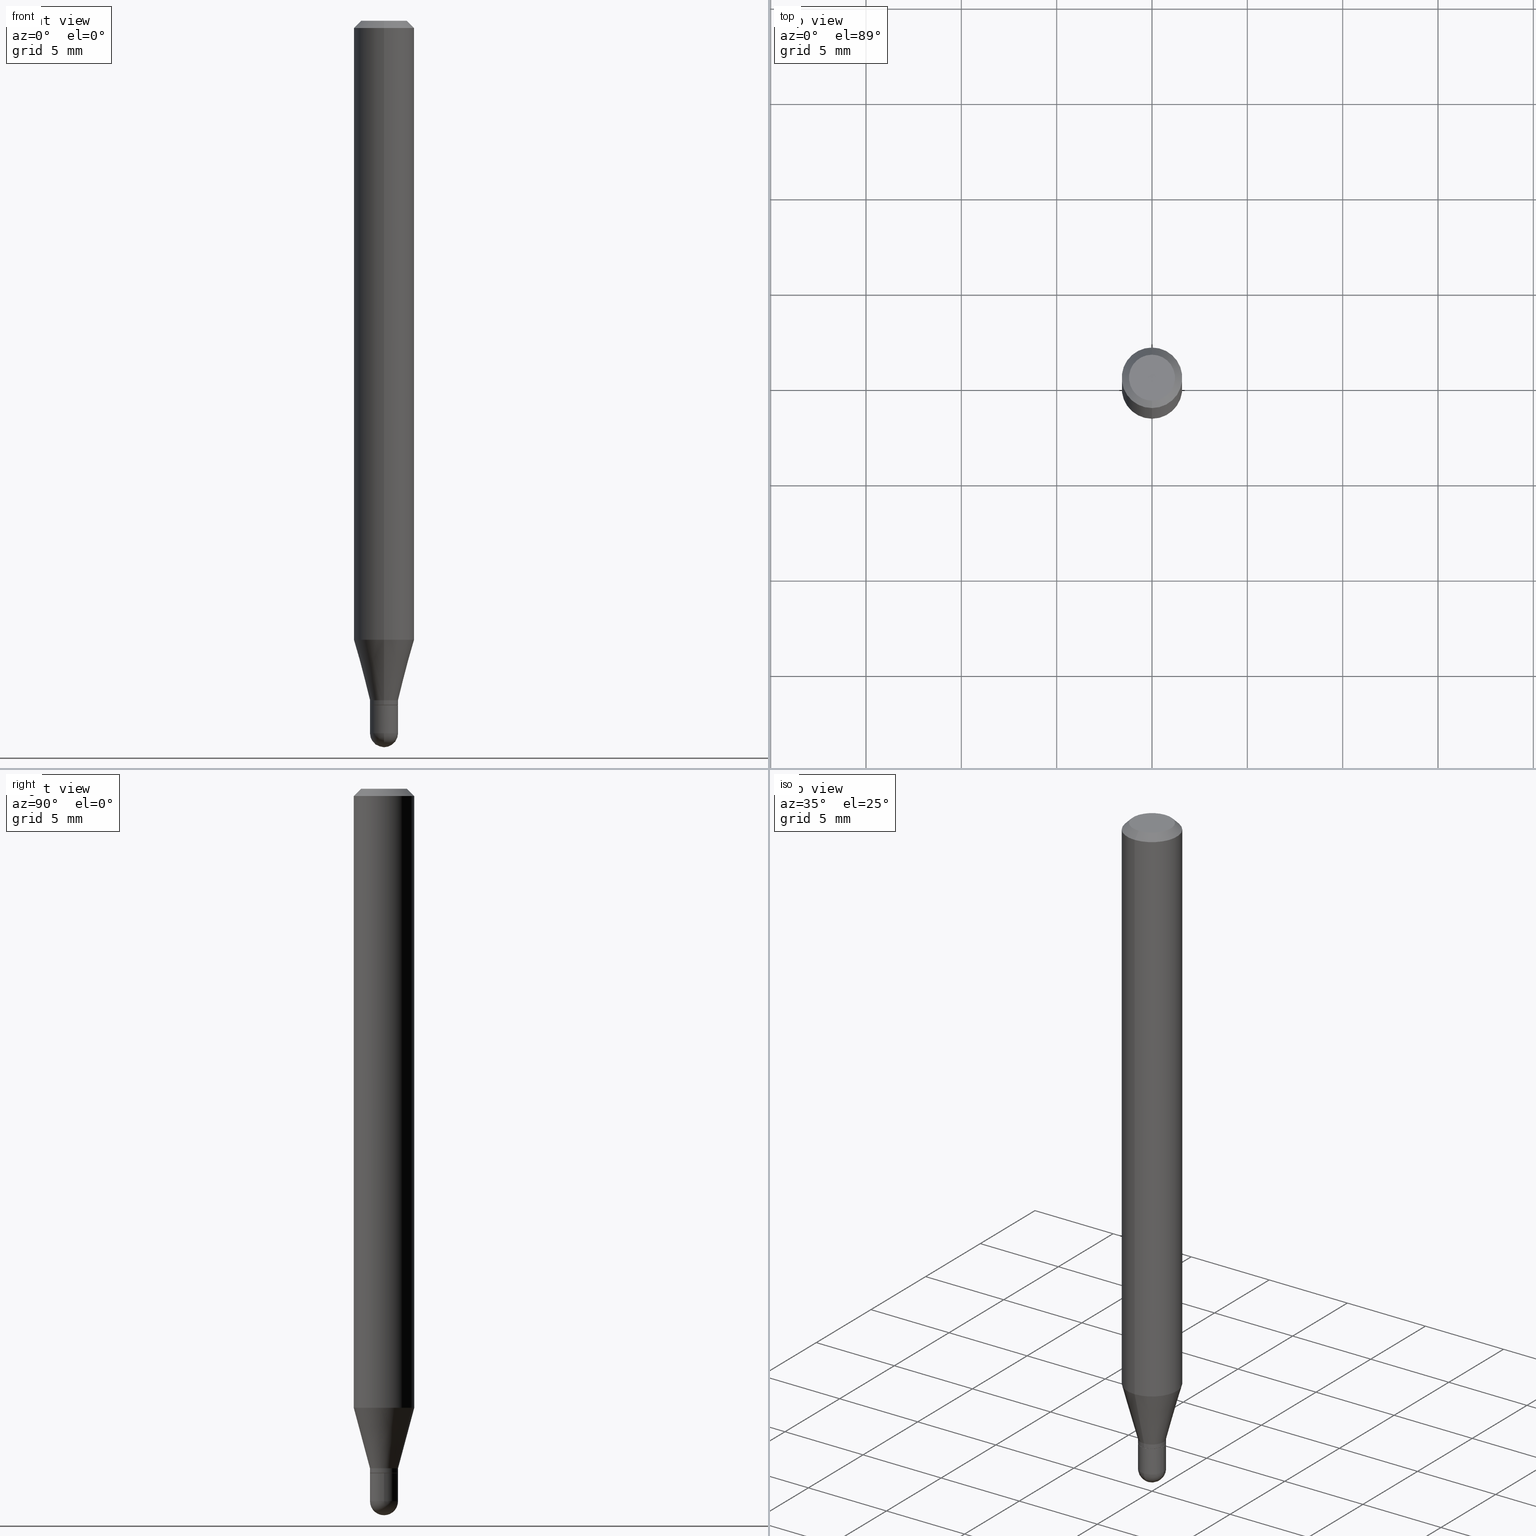
[diagram: canonical four-view strip — front | top / right | iso, engineering-drawing reading convention]
A machine part, canonical four-view strip (front | top / right | iso — engineering-drawing reading convention). The complete STEP part file that produces these views, byte-faithful:
ISO-10303-21;
HEADER;
FILE_DESCRIPTION (( 'STEP AP203' ),
    '1' );
FILE_NAME ('02521.STEP',
    '2024-03-07T20:13:27',
    ( '' ),
    ( '' ),
    'SwSTEP 2.0',
    'SolidWorks 2023',
    '' );
FILE_SCHEMA (( 'CONFIG_CONTROL_DESIGN' ));
ENDSEC;

DATA;
#1 = EDGE_LOOP ( 'NONE', ( #462, #78, #36, #10 ) ) ;
#2 = VECTOR ( 'NONE', #111, 39.37007874015748143 ) ;
#3 = LINE ( 'NONE', #357, #351 ) ;
#4 = CARTESIAN_POINT ( 'NONE',  ( 3.430983693992638216E-29, -4.898561265745397268E-15, -1.403000000000000247 ) ) ;
#5 = CARTESIAN_POINT ( 'NONE',  ( 3.454215586432359756E-29, -4.931730426133552981E-15, -1.412500000000000311 ) ) ;
#6 = ORIENTED_EDGE ( 'NONE', *, *, #396, .F. ) ;
#7 = ORIENTED_EDGE ( 'NONE', *, *, #63, .F. ) ;
#8 = DIRECTION ( 'NONE',  ( -2.445462362076006413E-29, 3.491490567174196263E-15, 1.000000000000000000 ) ) ;
#9 = EDGE_CURVE ( 'NONE', #283, #173, #240, .T. ) ;
#10 = ORIENTED_EDGE ( 'NONE', *, *, #348, .T. ) ;
#11 = VERTEX_POINT ( 'NONE', #358 ) ;
#12 = AXIS2_PLACEMENT_3D ( 'NONE', #428, #232, #322 ) ;
#13 = DIRECTION ( 'NONE',  ( -2.445462362076006413E-29, 3.491490567174196263E-15, 1.000000000000000000 ) ) ;
#14 = CLOSED_SHELL ( 'NONE', ( #70, #329, #98, #498, #57 ) ) ;
#15 = ORIENTED_EDGE ( 'NONE', *, *, #415, .F. ) ;
#16 = EDGE_LOOP ( 'NONE', ( #125, #77 ) ) ;
#17 = LINE ( 'NONE', #400, #392 ) ;
#18 = CARTESIAN_POINT ( 'NONE',  ( 2.042810365310630292E-16, 0.02849999999999506400, -1.413000000000000256 ) ) ;
#19 = VERTEX_POINT ( 'NONE', #159 ) ;
#20 = ORIENTED_EDGE ( 'NONE', *, *, #206, .T. ) ;
#21 = CIRCLE ( 'NONE', #267, 0.06250000000000000000 ) ;
#22 = ADVANCED_FACE ( 'NONE', ( #319 ), #189, .T. ) ;
#23 = DIRECTION ( 'NONE',  ( -2.445468806185136597E-29, 3.491481338843145583E-15, 1.000000000000000000 ) ) ;
#24 = CC_DESIGN_PERSON_AND_ORGANIZATION_ASSIGNMENT ( #53, #324, ( #101 ) ) ;
#25 = DIRECTION ( 'NONE',  ( 1.000000000000000000, -6.982962677686265922E-15, 0.000000000000000000 ) ) ;
#26 = AXIS2_PLACEMENT_3D ( 'NONE', #244, #375, #367 ) ;
#27 = APPROVAL_PERSON_ORGANIZATION ( #139, #213, #183 ) ;
#28 = DIRECTION ( 'NONE',  ( 1.000000000000000000, 0.000000000000000000, 0.000000000000000000 ) ) ;
#29 = DIRECTION ( 'NONE',  ( -2.445462362076006413E-29, 3.491490567174196263E-15, 1.000000000000000000 ) ) ;
#30 = APPROVAL_ROLE ( '' ) ;
#31 = PERSON_AND_ORGANIZATION_ROLE ( 'design_owner' ) ;
#32 = AXIS2_PLACEMENT_3D ( 'NONE', #370, #13, #168 ) ;
#33 = PLANE ( 'NONE',  #477 ) ;
#34 = CARTESIAN_POINT ( 'NONE',  ( 2.060573933704652780E-16, 0.02899999999999490485, -1.471000000000000307 ) ) ;
#35 = DATE_AND_TIME ( #105, #325 ) ;
#36 = ORIENTED_EDGE ( 'NONE', *, *, #450, .T. ) ;
#37 = ADVANCED_FACE ( 'NONE', ( #362 ), #150, .T. ) ;
#38 = CARTESIAN_POINT ( 'NONE',  ( 0.000000000000000000, 0.000000000000000000, 0.000000000000000000 ) ) ;
#39 = DIRECTION ( 'NONE',  ( -2.445462362076006413E-29, 3.491490567174196263E-15, 1.000000000000000000 ) ) ;
#40 = CARTESIAN_POINT ( 'NONE',  ( 2.025046796916630729E-16, 0.02849999999999506400, -1.413000000000000256 ) ) ;
#41 = CARTESIAN_POINT ( 'NONE',  ( 3.668193543114090054E-31, -5.237235850761408829E-17, -0.01500000000000032904 ) ) ;
#42 = CYLINDRICAL_SURFACE ( 'NONE', #468, 0.06250000000000000000 ) ;
#43 = EDGE_LOOP ( 'NONE', ( #465, #449, #482, #480 ) ) ;
#44 = COORDINATED_UNIVERSAL_TIME_OFFSET ( 5, 0, .BEHIND. ) ;
#45 = APPROVAL ( #69, 'UNSPECIFIED' ) ;
#46 = DIRECTION ( 'NONE',  ( -2.445468806185136877E-29, 3.491481338843145188E-15, 1.000000000000000000 ) ) ;
#47 = EDGE_CURVE ( 'NONE', #201, #56, #86, .T. ) ;
#48 = VERTEX_POINT ( 'NONE', #104 ) ;
#49 = DIRECTION ( 'NONE',  ( -6.982962677686266711E-15, -1.000000000000000000, 3.491490567174196263E-15 ) ) ;
#50 = AXIS2_PLACEMENT_3D ( 'NONE', #5, #355, #235 ) ;
#51 = DIRECTION ( 'NONE',  ( -2.445462362076006413E-29, 3.491490567174196263E-15, 1.000000000000000000 ) ) ;
#52 = FACE_OUTER_BOUND ( 'NONE', #289, .T. ) ;
#53 = PERSON_AND_ORGANIZATION ( #470, #427 ) ;
#54 = EDGE_LOOP ( 'NONE', ( #447, #95, #226, #337 ) ) ;
#55 = DIRECTION ( 'NONE',  ( -2.445462362076006133E-29, 3.491490567174196658E-15, 1.000000000000000000 ) ) ;
#56 = VERTEX_POINT ( 'NONE', #122 ) ;
#57 = ADVANCED_FACE ( 'NONE', ( #262 ), #225, .T. ) ;
#58 = CARTESIAN_POINT ( 'NONE',  ( 0.000000000000000000, 0.000000000000000000, 0.000000000000000000 ) ) ;
#59 = AXIS2_PLACEMENT_3D ( 'NONE', #41, #202, #211 ) ;
#60 = CARTESIAN_POINT ( 'NONE',  ( 0.000000000000000000, 0.000000000000000000, 0.000000000000000000 ) ) ;
#61 = EDGE_CURVE ( 'NONE', #242, #11, #327, .T. ) ;
#62 = DIRECTION ( 'NONE',  ( 1.000000000000000000, -6.982962677686266711E-15, 4.876176775795935793E-29 ) ) ;
#63 = EDGE_CURVE ( 'NONE', #11, #19, #144, .T. ) ;
#64 = PRODUCT_DEFINITION ( 'UNKNOWN', '', #101, #255 ) ;
#65 = CARTESIAN_POINT ( 'NONE',  ( 3.594804631659716252E-29, -5.139520525155795537E-15, -1.471000000000000307 ) ) ;
#66 = AXIS2_PLACEMENT_3D ( 'NONE', #38, #312, #82 ) ;
#67 = APPLICATION_PROTOCOL_DEFINITION ( 'international standard', 'config_control_design', 1994, #377 ) ;
#68 = EDGE_CURVE ( 'NONE', #402, #242, #330, .T. ) ;
#69 = APPROVAL_STATUS ( 'not_yet_approved' ) ;
#70 = ADVANCED_FACE ( 'NONE', ( #501 ), #456, .T. ) ;
#71 = DIRECTION ( 'NONE',  ( -2.445462362076006133E-29, 3.491490567174196658E-15, 1.000000000000000000 ) ) ;
#72 = DIRECTION ( 'NONE',  ( -2.445468806185136597E-29, 3.491481338843145583E-15, 1.000000000000000000 ) ) ;
#73 = VECTOR ( 'NONE', #422, 39.37007874015748854 ) ;
#74 = EDGE_LOOP ( 'NONE', ( #252, #247, #248, #87 ) ) ;
#75 = ADVANCED_FACE ( 'NONE', ( #347 ), #219, .F. ) ;
#76 = DIRECTION ( 'NONE',  ( -2.445462362076006413E-29, 3.491490567174196263E-15, 1.000000000000000000 ) ) ;
#77 = ORIENTED_EDGE ( 'NONE', *, *, #415, .T. ) ;
#78 = ORIENTED_EDGE ( 'NONE', *, *, #440, .F. ) ;
#79 = DIRECTION ( 'NONE',  ( -6.982962677686265922E-15, -1.000000000000000000, 3.491490567174195869E-15 ) ) ;
#80 = COORDINATED_UNIVERSAL_TIME_OFFSET ( 5, 0, .BEHIND. ) ;
#81 = EDGE_LOOP ( 'NONE', ( #121, #487 ) ) ;
#82 = DIRECTION ( 'NONE',  ( -6.982962677686265922E-15, -1.000000000000000000, 3.491490567174195869E-15 ) ) ;
#83 = SECURITY_CLASSIFICATION_LEVEL ( 'unclassified' ) ;
#84 = LOCAL_TIME ( 15, 13, 27.00000000000000000, #44 ) ;
#85 = FACE_OUTER_BOUND ( 'NONE', #54, .T. ) ;
#86 = CIRCLE ( 'NONE', #260, 0.02900000000000000147 ) ;
#87 = ORIENTED_EDGE ( 'NONE', *, *, #199, .F. ) ;
#88 = EDGE_CURVE ( 'NONE', #439, #231, #177, .T. ) ;
#89 = CARTESIAN_POINT ( 'NONE',  ( 3.430983693992638216E-29, -4.898561265745397268E-15, -1.403000000000000247 ) ) ;
#90 = CARTESIAN_POINT ( 'NONE',  ( -4.364351673553916201E-16, -0.06250000000000000000, 2.182181604483872418E-16 ) ) ;
#91 = CARTESIAN_POINT ( 'NONE',  ( 8.024699379022379345E-45, -1.145720442104045864E-30, -3.281465093664347996E-16 ) ) ;
#92 = DIRECTION ( 'NONE',  ( 6.982962677686265922E-15, 1.000000000000000000, -3.483106191921935554E-15 ) ) ;
#93 = CIRCLE ( 'NONE', #116, 0.02899999999999992514 ) ;
#94 = VERTEX_POINT ( 'NONE', #383 ) ;
#95 = ORIENTED_EDGE ( 'NONE', *, *, #308, .T. ) ;
#96 = APPROVAL_STATUS ( 'not_yet_approved' ) ;
#97 = PERSON_AND_ORGANIZATION ( #470, #427 ) ;
#98 = ADVANCED_FACE ( 'NONE', ( #342 ), #176, .F. ) ;
#99 = VECTOR ( 'NONE', #411, 39.37007874015748143 ) ;
#100 =( CONVERSION_BASED_UNIT ( 'INCH', #451 ) LENGTH_UNIT ( ) NAMED_UNIT ( #175 ) );
#101 = PRODUCT_DEFINITION_FORMATION_WITH_SPECIFIED_SOURCE ( 'ANY', '', #414, .NOT_KNOWN. ) ;
#102 = AXIS2_PLACEMENT_3D ( 'NONE', #305, #387, #346 ) ;
#103 = AXIS2_PLACEMENT_3D ( 'NONE', #287, #331, #123 ) ;
#104 = CARTESIAN_POINT ( 'NONE',  ( 3.250733016102783684E-16, 0.02899999999999502281, -1.403000000000000247 ) ) ;
#105 = CALENDAR_DATE ( 2024, 7, 3 ) ;
#106 =( LENGTH_UNIT ( ) NAMED_UNIT ( * ) SI_UNIT ( $, .METRE. ) );
#107 = CARTESIAN_POINT ( 'NONE',  ( -1.990144363140240186E-16, -0.02850000000000493458, -1.413000000000000256 ) ) ;
#108 = DIRECTION ( 'NONE',  ( 7.105427357601001070E-15, 1.000000000000000000, 0.000000000000000000 ) ) ;
#109 = EDGE_CURVE ( 'NONE', #502, #94, #21, .T. ) ;
#110 = MANIFOLD_SOLID_BREP ( 'Body-Move/Copy2[2]', #491 ) ;
#111 = DIRECTION ( 'NONE',  ( -4.851104656540964275E-15, -0.7071067811865500152, -0.7071067811865450192 ) ) ;
#112 = ORIENTED_EDGE ( 'NONE', *, *, #61, .T. ) ;
#113 = PERSON_AND_ORGANIZATION ( #470, #427 ) ;
#114 = FACE_OUTER_BOUND ( 'NONE', #332, .T. ) ;
#115 = CARTESIAN_POINT ( 'NONE',  ( 3.594804631659716252E-29, -5.139520525155795537E-15, -1.471000000000000307 ) ) ;
#116 = AXIS2_PLACEMENT_3D ( 'NONE', #316, #76, #196 ) ;
#117 = LINE ( 'NONE', #507, #2 ) ;
#118 = DIRECTION ( 'NONE',  ( -6.982962677686265922E-15, -1.000000000000000000, 0.000000000000000000 ) ) ;
#119 = DIRECTION ( 'NONE',  ( -6.982962677686265922E-15, -1.000000000000000000, 0.000000000000000000 ) ) ;
#120 = PERSON_AND_ORGANIZATION_ROLE ( 'design_supplier' ) ;
#121 = ORIENTED_EDGE ( 'NONE', *, *, #386, .F. ) ;
#122 = CARTESIAN_POINT ( 'NONE',  ( -0.02900000000000000147, -4.828658697241387426E-15, -1.413000000000000256 ) ) ;
#123 = DIRECTION ( 'NONE',  ( -6.982962677686265922E-15, -1.000000000000000000, 3.483106191921935554E-15 ) ) ;
#124 = DATE_TIME_ROLE ( 'creation_date' ) ;
#125 = ORIENTED_EDGE ( 'NONE', *, *, #47, .T. ) ;
#126 = VECTOR ( 'NONE', #207, 39.37007874015748143 ) ;
#127 = LOCAL_TIME ( 15, 13, 27.00000000000000000, #406 ) ;
#128 = CARTESIAN_POINT ( 'NONE',  ( 3.668193543114090054E-31, -5.237235850761408829E-17, -0.01500000000000032904 ) ) ;
#129 = DIRECTION ( 'NONE',  ( -2.445462362076006413E-29, 3.491490567174196263E-15, 1.000000000000000000 ) ) ;
#130 = ORIENTED_EDGE ( 'NONE', *, *, #460, .F. ) ;
#131 = ORIENTED_EDGE ( 'NONE', *, *, #271, .F. ) ;
#132 = DIRECTION ( 'NONE',  ( -6.982962677686265922E-15, -1.000000000000000000, 0.000000000000000000 ) ) ;
#133 = FACE_OUTER_BOUND ( 'NONE', #335, .T. ) ;
#134 = ORIENTED_EDGE ( 'NONE', *, *, #493, .T. ) ;
#135 = DIRECTION ( 'NONE',  ( -1.000000000000000000, 6.982962677686265922E-15, -4.883557194083112340E-29 ) ) ;
#136 = EDGE_LOOP ( 'NONE', ( #130, #208, #436, #374 ) ) ;
#137 = AXIS2_PLACEMENT_3D ( 'NONE', #188, #29, #472 ) ;
#138 = ORIENTED_EDGE ( 'NONE', *, *, #109, .F. ) ;
#139 = PERSON_AND_ORGANIZATION ( #470, #427 ) ;
#140 = DIRECTION ( 'NONE',  ( -2.445462362076006413E-29, 3.491490567174196263E-15, 1.000000000000000000 ) ) ;
#141 = AXIS2_PLACEMENT_3D ( 'NONE', #478, #51, #334 ) ;
#142 = VECTOR ( 'NONE', #398, 39.37007874015748143 ) ;
#143 = CYLINDRICAL_SURFACE ( 'NONE', #197, 0.06250000000000000000 ) ;
#144 = CIRCLE ( 'NONE', #429, 0.02900000000000000147 ) ;
#145 =( NAMED_UNIT ( * ) PLANE_ANGLE_UNIT ( ) SI_UNIT ( $, .RADIAN. ) );
#146 = ADVANCED_BREP_SHAPE_REPRESENTATION ( '02521', ( #461, #110, #304 ), #279 ) ;
#147 = DIRECTION ( 'NONE',  ( 0.000000000000000000, 0.000000000000000000, 1.000000000000000000 ) ) ;
#148 = VECTOR ( 'NONE', #281, 39.37007874015748143 ) ;
#149 = VERTEX_POINT ( 'NONE', #107 ) ;
#150 = CONICAL_SURFACE ( 'NONE', #506, 0.02899999999999992514, 0.2617993877991505736 ) ;
#151 = DIRECTION ( 'NONE',  ( 2.445462362076005572E-29, -3.491490567174196658E-15, -1.000000000000000000 ) ) ;
#152 = CALENDAR_DATE ( 2024, 7, 3 ) ;
#153 = ORIENTED_EDGE ( 'NONE', *, *, #341, .T. ) ;
#154 = PERSON_AND_ORGANIZATION_ROLE ( 'creator' ) ;
#155 = ADVANCED_FACE ( 'NONE', ( #265 ), #143, .T. ) ;
#156 = LINE ( 'NONE', #227, #306 ) ;
#157 = CARTESIAN_POINT ( 'NONE',  ( -2.025059176528669025E-16, -0.02900000000000482400, -1.403000000000000247 ) ) ;
#158 = AXIS2_PLACEMENT_3D ( 'NONE', #309, #413, #416 ) ;
#159 = CARTESIAN_POINT ( 'NONE',  ( -2.025059176528660396E-16, -0.02900000000000517442, -1.471000000000000307 ) ) ;
#160 = CARTESIAN_POINT ( 'NONE',  ( 0.02900000000000000147, -2.025059176529017356E-16, 1.414091264980821422E-30 ) ) ;
#161 = VERTEX_POINT ( 'NONE', #200 ) ;
#162 = EDGE_CURVE ( 'NONE', #231, #502, #512, .T. ) ;
#163 = CARTESIAN_POINT ( 'NONE',  ( 3.664483235919775199E-29, -5.242549221841010550E-15, -1.500000000000000444 ) ) ;
#164 = CARTESIAN_POINT ( 'NONE',  ( 0.000000000000000000, 0.000000000000000000, 0.000000000000000000 ) ) ;
#165 = ORIENTED_EDGE ( 'NONE', *, *, #466, .F. ) ;
#166 = ORIENTED_EDGE ( 'NONE', *, *, #222, .T. ) ;
#167 = AXIS2_PLACEMENT_3D ( 'NONE', #276, #320, #119 ) ;
#168 = DIRECTION ( 'NONE',  ( -6.982962677686265922E-15, -1.000000000000000000, 0.000000000000000000 ) ) ;
#169 = DIRECTION ( 'NONE',  ( -2.445462362076006413E-29, 3.491490567174196263E-15, 1.000000000000000000 ) ) ;
#170 = ORIENTED_EDGE ( 'NONE', *, *, #88, .T. ) ;
#171 = CARTESIAN_POINT ( 'NONE',  ( 3.668193543114090054E-31, -5.237235850761408829E-17, -0.01500000000000032904 ) ) ;
#172 = CARTESIAN_POINT ( 'NONE',  ( 3.594804631659716252E-29, -5.139520525155795537E-15, -1.471000000000000307 ) ) ;
#173 = VERTEX_POINT ( 'NONE', #430 ) ;
#174 = CIRCLE ( 'NONE', #453, 0.02900000000000000147 ) ;
#175 = DIMENSIONAL_EXPONENTS ( 1.000000000000000000, 0.000000000000000000, 0.000000000000000000, 0.000000000000000000, 0.000000000000000000, 0.000000000000000000, 0.000000000000000000 ) ;
#176 = PLANE ( 'NONE',  #343 ) ;
#177 = LINE ( 'NONE', #457, #99 ) ;
#178 = CONICAL_SURFACE ( 'NONE', #137, 0.02899999999999992514, 0.2617993877991505736 ) ;
#179 = APPLICATION_CONTEXT ( 'configuration controlled 3d designs of mechanical parts and assemblies' ) ;
#180 = EDGE_CURVE ( 'NONE', #185, #48, #3, .T. ) ;
#181 = SHAPE_DEFINITION_REPRESENTATION ( #266, #146 ) ;
#182 = DIRECTION ( 'NONE',  ( -6.982962677686266711E-15, -1.000000000000000000, 3.491490567174196263E-15 ) ) ;
#183 = APPROVAL_ROLE ( '' ) ;
#184 = APPROVAL ( #353, 'UNSPECIFIED' ) ;
#185 = VERTEX_POINT ( 'NONE', #278 ) ;
#186 = APPROVAL_ROLE ( '' ) ;
#187 = EDGE_CURVE ( 'NONE', #185, #439, #434, .T. ) ;
#188 = CARTESIAN_POINT ( 'NONE',  ( 3.430983693992638216E-29, -4.898561265745397268E-15, -1.403000000000000247 ) ) ;
#189 = CONICAL_SURFACE ( 'NONE', #270, 0.02850000000000000103, 0.7853981633974739252 ) ;
#190 = VERTEX_POINT ( 'NONE', #393 ) ;
#191 = PERSON_AND_ORGANIZATION ( #470, #427 ) ;
#192 = PRODUCT_RELATED_PRODUCT_CATEGORY ( 'detail', '', ( #414 ) ) ;
#193 = FACE_OUTER_BOUND ( 'NONE', #333, .T. ) ;
#194 = DIRECTION ( 'NONE',  ( -2.445462362076006413E-29, 3.491490567174196263E-15, 1.000000000000000000 ) ) ;
#195 = DIRECTION ( 'NONE',  ( -2.445462362076006413E-29, 3.491490567174196263E-15, 1.000000000000000000 ) ) ;
#196 = DIRECTION ( 'NONE',  ( -6.982962677686265922E-15, -1.000000000000000000, 0.000000000000000000 ) ) ;
#197 = AXIS2_PLACEMENT_3D ( 'NONE', #395, #194, #79 ) ;
#198 = ORIENTED_EDGE ( 'NONE', *, *, #180, .T. ) ;
#199 = EDGE_CURVE ( 'NONE', #149, #439, #156, .T. ) ;
#200 = CARTESIAN_POINT ( 'NONE',  ( 0.02900000000000000147, -5.237222008264718177E-15, -1.471000000000000307 ) ) ;
#201 = VERTEX_POINT ( 'NONE', #228 ) ;
#202 = DIRECTION ( 'NONE',  ( 2.445462362076006413E-29, -3.491490567174196263E-15, -1.000000000000000000 ) ) ;
#203 = DIRECTION ( 'NONE',  ( 1.000000000000000000, -6.982962677686265922E-15, 4.883557194083112340E-29 ) ) ;
#204 = ORIENTED_EDGE ( 'NONE', *, *, #222, .F. ) ;
#205 = FACE_OUTER_BOUND ( 'NONE', #43, .T. ) ;
#206 = EDGE_CURVE ( 'NONE', #439, #185, #93, .T. ) ;
#207 = DIRECTION ( 'NONE',  ( -2.445462362076006133E-29, 3.491490567174196658E-15, 1.000000000000000000 ) ) ;
#208 = ORIENTED_EDGE ( 'NONE', *, *, #368, .T. ) ;
#209 = CIRCLE ( 'NONE', #103, 0.06250000000000000000 ) ;
#210 = SECURITY_CLASSIFICATION ( '', '', #83 ) ;
#211 = DIRECTION ( 'NONE',  ( 6.982962677686265922E-15, 1.000000000000000000, -3.483106191921935554E-15 ) ) ;
#212 = DATE_AND_TIME ( #371, #127 ) ;
#213 = APPROVAL ( #96, 'UNSPECIFIED' ) ;
#214 = DIRECTION ( 'NONE',  ( -6.982962677686265922E-15, -1.000000000000000000, 3.491490567174195869E-15 ) ) ;
#215 = ORIENTED_EDGE ( 'NONE', *, *, #109, .T. ) ;
#216 = CYLINDRICAL_SURFACE ( 'NONE', #361, 0.02899999999999992514 ) ;
#217 = ORIENTED_EDGE ( 'NONE', *, *, #460, .T. ) ;
#218 = AXIS2_PLACEMENT_3D ( 'NONE', #115, #135, #132 ) ;
#219 = PLANE ( 'NONE',  #390 ) ;
#220 = DIRECTION ( 'NONE',  ( -2.445462362076006413E-29, 3.491490567174196263E-15, 1.000000000000000000 ) ) ;
#221 = CARTESIAN_POINT ( 'NONE',  ( 3.455438317613396551E-29, -4.933476171417140248E-15, -1.413000000000000256 ) ) ;
#222 = EDGE_CURVE ( 'NONE', #161, #201, #359, .T. ) ;
#223 = CIRCLE ( 'NONE', #167, 0.02899999999999992514 ) ;
#224 = APPROVAL_PERSON_ORGANIZATION ( #421, #45, #186 ) ;
#225 = CYLINDRICAL_SURFACE ( 'NONE', #455, 0.02900000000000000147 ) ;
#226 = ORIENTED_EDGE ( 'NONE', *, *, #339, .T. ) ;
#227 = CARTESIAN_POINT ( 'NONE',  ( -1.990144363140240186E-16, -0.02850000000000493458, -1.413000000000000256 ) ) ;
#228 = CARTESIAN_POINT ( 'NONE',  ( 0.02900000000000000147, -5.135969049438267025E-15, -1.413000000000000256 ) ) ;
#229 = AXIS2_PLACEMENT_3D ( 'NONE', #65, #499, #108 ) ;
#230 = EDGE_CURVE ( 'NONE', #231, #48, #223, .T. ) ;
#231 = VERTEX_POINT ( 'NONE', #425 ) ;
#232 = DIRECTION ( 'NONE',  ( 1.000000000000000000, -6.982962677686265922E-15, 4.883557194083112340E-29 ) ) ;
#233 = ORIENTED_EDGE ( 'NONE', *, *, #61, .F. ) ;
#234 = VERTEX_POINT ( 'NONE', #391 ) ;
#235 = DIRECTION ( 'NONE',  ( -6.982962677686265922E-15, -1.000000000000000000, 0.000000000000000000 ) ) ;
#236 = ORIENTED_EDGE ( 'NONE', *, *, #187, .T. ) ;
#237 = SPHERICAL_SURFACE ( 'NONE', #12, 0.02900000000000007780 ) ;
#238 = AXIS2_PLACEMENT_3D ( 'NONE', #263, #497, #182 ) ;
#239 = ORIENTED_EDGE ( 'NONE', *, *, #230, .F. ) ;
#240 = CIRCLE ( 'NONE', #301, 0.04749999999999999362 ) ;
#241 = CARTESIAN_POINT ( 'NONE',  ( 3.455438317613396551E-29, -4.933476171417140248E-15, -1.413000000000000256 ) ) ;
#242 = VERTEX_POINT ( 'NONE', #34 ) ;
#243 = EDGE_LOOP ( 'NONE', ( #437, #394, #365, #489 ) ) ;
#244 = CARTESIAN_POINT ( 'NONE',  ( 3.455447423139598357E-29, -4.933463131785365512E-15, -1.413000000000000256 ) ) ;
#245 = EDGE_CURVE ( 'NONE', #510, #185, #321, .T. ) ;
#246 = LINE ( 'NONE', #90, #412 ) ;
#247 = ORIENTED_EDGE ( 'NONE', *, *, #245, .T. ) ;
#248 = ORIENTED_EDGE ( 'NONE', *, *, #206, .F. ) ;
#249 = DIRECTION ( 'NONE',  ( -6.982962677686265922E-15, -1.000000000000000000, 3.483106191921935554E-15 ) ) ;
#250 = DIRECTION ( 'NONE',  ( -6.982962677686265922E-15, -1.000000000000000000, 0.000000000000000000 ) ) ;
#251 = APPROVAL_DATE_TIME ( #426, #184 ) ;
#252 = ORIENTED_EDGE ( 'NONE', *, *, #386, .T. ) ;
#253 = AXIS2_PLACEMENT_3D ( 'NONE', #89, #404, #441 ) ;
#254 = CC_DESIGN_APPROVAL ( #184, ( #101 ) ) ;
#255 = DESIGN_CONTEXT ( 'detailed design', #179, 'design' ) ;
#256 = CARTESIAN_POINT ( 'NONE',  ( 3.455438317613396551E-29, -4.933476171417140248E-15, -1.413000000000000256 ) ) ;
#257 = ADVANCED_FACE ( 'NONE', ( #469 ), #178, .T. ) ;
#258 = DIRECTION ( 'NONE',  ( -6.982962677686265922E-15, -1.000000000000000000, 3.491490567174196658E-15 ) ) ;
#259 = AXIS2_PLACEMENT_3D ( 'NONE', #241, #8, #485 ) ;
#260 = AXIS2_PLACEMENT_3D ( 'NONE', #297, #23, #495 ) ;
#261 = CONICAL_SURFACE ( 'NONE', #32, 0.02850000000000000103, 0.7853981633974739252 ) ;
#262 = FACE_OUTER_BOUND ( 'NONE', #443, .T. ) ;
#263 = CARTESIAN_POINT ( 'NONE',  ( 8.024699379022379345E-45, -1.145720442104045864E-30, -3.281465093664347996E-16 ) ) ;
#264 = DIRECTION ( 'NONE',  ( -2.445468806185136597E-29, 3.491481338843145583E-15, 1.000000000000000000 ) ) ;
#265 = FACE_OUTER_BOUND ( 'NONE', #136, .T. ) ;
#266 = PRODUCT_DEFINITION_SHAPE ( 'NONE', 'NONE',  #64 ) ;
#267 = AXIS2_PLACEMENT_3D ( 'NONE', #494, #140, #452 ) ;
#268 = CC_DESIGN_APPROVAL ( #45, ( #64 ) ) ;
#269 = CARTESIAN_POINT ( 'NONE',  ( 2.025059176529362483E-16, 0.02899999999999506792, -1.413000000000000256 ) ) ;
#270 = AXIS2_PLACEMENT_3D ( 'NONE', #471, #39, #118 ) ;
#271 = EDGE_CURVE ( 'NONE', #161, #242, #174, .T. ) ;
#272 = LINE ( 'NONE', #423, #381 ) ;
#273 = CYLINDRICAL_SURFACE ( 'NONE', #66, 0.02899999999999992514 ) ;
#274 = DATE_AND_TIME ( #504, #373 ) ;
#275 = ADVANCED_FACE ( 'NONE', ( #114 ), #33, .F. ) ;
#276 = CARTESIAN_POINT ( 'NONE',  ( 3.430983693992638216E-29, -4.898561265745397268E-15, -1.403000000000000247 ) ) ;
#277 = LINE ( 'NONE', #356, #126 ) ;
#278 = CARTESIAN_POINT ( 'NONE',  ( 2.060573933704622951E-16, 0.02899999999999489098, -1.412500000000000311 ) ) ;
#279 =( GEOMETRIC_REPRESENTATION_CONTEXT ( 3 ) GLOBAL_UNCERTAINTY_ASSIGNED_CONTEXT ( ( #445 ) ) GLOBAL_UNIT_ASSIGNED_CONTEXT ( ( #100, #145, #388 ) ) REPRESENTATION_CONTEXT ( 'NONE', 'WORKASPACE' ) );
#280 = ORIENTED_EDGE ( 'NONE', *, *, #88, .F. ) ;
#281 = DIRECTION ( 'NONE',  ( -2.445468806185136877E-29, 3.491481338843145188E-15, 1.000000000000000000 ) ) ;
#282 = PERSON_AND_ORGANIZATION ( #470, #427 ) ;
#283 = VERTEX_POINT ( 'NONE', #352 ) ;
#284 = CC_DESIGN_DATE_AND_TIME_ASSIGNMENT ( #35, #124, ( #64 ) ) ;
#285 = DIRECTION ( 'NONE',  ( 6.982962677686265922E-15, 1.000000000000000000, -3.491490567174196658E-15 ) ) ;
#286 = ORIENTED_EDGE ( 'NONE', *, *, #230, .T. ) ;
#287 = CARTESIAN_POINT ( 'NONE',  ( 3.668193543114090054E-31, -5.237235850761408829E-17, -0.01500000000000032904 ) ) ;
#288 = CIRCLE ( 'NONE', #259, 0.02850000000000000103 ) ;
#289 = EDGE_LOOP ( 'NONE', ( #215, #217, #407, #165 ) ) ;
#290 = PERSON_AND_ORGANIZATION_ROLE ( 'classification_officer' ) ;
#291 = DIRECTION ( 'NONE',  ( 2.445462362076006413E-29, -3.491490567174196263E-15, -1.000000000000000000 ) ) ;
#292 = ORIENTED_EDGE ( 'NONE', *, *, #9, .T. ) ;
#293 = CC_DESIGN_PERSON_AND_ORGANIZATION_ASSIGNMENT ( #476, #290, ( #210 ) ) ;
#294 = ORIENTED_EDGE ( 'NONE', *, *, #417, .T. ) ;
#295 = CARTESIAN_POINT ( 'NONE',  ( 3.597284613898336423E-29, -5.135969049438267814E-15, -1.471000000000000307 ) ) ;
#296 = EDGE_LOOP ( 'NONE', ( #311, #236, #170, #6 ) ) ;
#297 = CARTESIAN_POINT ( 'NONE',  ( 3.455447423139598357E-29, -4.933463131785365512E-15, -1.413000000000000256 ) ) ;
#298 = DIRECTION ( 'NONE',  ( -6.982962677686265922E-15, -1.000000000000000000, 0.000000000000000000 ) ) ;
#299 = ORIENTED_EDGE ( 'NONE', *, *, #341, .F. ) ;
#300 = AXIS2_PLACEMENT_3D ( 'NONE', #295, #435, #438 ) ;
#301 = AXIS2_PLACEMENT_3D ( 'NONE', #91, #195, #49 ) ;
#302 = EDGE_LOOP ( 'NONE', ( #286, #134, #138, #399 ) ) ;
#303 = VECTOR ( 'NONE', #363, 39.37007874015748143 ) ;
#304 = AXIS2_PLACEMENT_3D ( 'NONE', #500, #147, #28 ) ;
#305 = CARTESIAN_POINT ( 'NONE',  ( 3.597284613898336423E-29, -5.135969049438267814E-15, -1.471000000000000307 ) ) ;
#306 = VECTOR ( 'NONE', #314, 39.37007874015748143 ) ;
#307 = LOCAL_TIME ( 15, 13, 27.00000000000000000, #80 ) ;
#308 = EDGE_CURVE ( 'NONE', #283, #234, #117, .T. ) ;
#309 = CARTESIAN_POINT ( 'NONE',  ( 0.000000000000000000, 0.000000000000000000, 0.000000000000000000 ) ) ;
#310 = ADVANCED_FACE ( 'NONE', ( #193 ), #273, .T. ) ;
#311 = ORIENTED_EDGE ( 'NONE', *, *, #180, .F. ) ;
#312 = DIRECTION ( 'NONE',  ( -2.445462362076006413E-29, 3.491490567174196263E-15, 1.000000000000000000 ) ) ;
#313 = COORDINATED_UNIVERSAL_TIME_OFFSET ( 5, 0, .BEHIND. ) ;
#314 = DIRECTION ( 'NONE',  ( -4.937700262164674260E-15, -0.7071067811865632269, 0.7071067811865319186 ) ) ;
#315 = CC_DESIGN_PERSON_AND_ORGANIZATION_ASSIGNMENT ( #113, #31, ( #414 ) ) ;
#316 = CARTESIAN_POINT ( 'NONE',  ( 3.454215586432359756E-29, -4.931730426133552981E-15, -1.412500000000000311 ) ) ;
#317 = CONICAL_SURFACE ( 'NONE', #59, 0.06250000000000000000, 0.7853981633974483900 ) ;
#318 = CC_DESIGN_SECURITY_CLASSIFICATION ( #210, ( #101 ) ) ;
#319 = FACE_OUTER_BOUND ( 'NONE', #74, .T. ) ;
#320 = DIRECTION ( 'NONE',  ( -2.445462362076006413E-29, 3.491490567174196263E-15, 1.000000000000000000 ) ) ;
#321 = LINE ( 'NONE', #40, #303 ) ;
#322 = DIRECTION ( 'NONE',  ( -6.982962677686265922E-15, -1.000000000000000000, 0.000000000000000000 ) ) ;
#323 = CIRCLE ( 'NONE', #218, 0.02900000000000007780 ) ;
#324 = PERSON_AND_ORGANIZATION_ROLE ( 'creator' ) ;
#325 = LOCAL_TIME ( 15, 13, 27.00000000000000000, #313 ) ;
#326 = ORIENTED_EDGE ( 'NONE', *, *, #336, .F. ) ;
#327 = CIRCLE ( 'NONE', #102, 0.02900000000000000147 ) ;
#328 = ORIENTED_EDGE ( 'NONE', *, *, #440, .T. ) ;
#329 = ADVANCED_FACE ( 'NONE', ( #464 ), #237, .T. ) ;
#330 = CIRCLE ( 'NONE', #229, 0.02900000000000007780 ) ;
#331 = DIRECTION ( 'NONE',  ( -2.445462362076006413E-29, 3.491490567174196263E-15, 1.000000000000000000 ) ) ;
#332 = EDGE_LOOP ( 'NONE', ( #328, #292 ) ) ;
#333 = EDGE_LOOP ( 'NONE', ( #20, #198, #239, #280 ) ) ;
#334 = DIRECTION ( 'NONE',  ( -6.982962677686265922E-15, -1.000000000000000000, 4.370956789862821150E-15 ) ) ;
#335 = EDGE_LOOP ( 'NONE', ( #369, #364, #7, #233 ) ) ;
#336 = EDGE_CURVE ( 'NONE', #402, #19, #323, .T. ) ;
#337 = ORIENTED_EDGE ( 'NONE', *, *, #450, .F. ) ;
#338 = DATE_AND_TIME ( #481, #84 ) ;
#339 = EDGE_CURVE ( 'NONE', #234, #190, #209, .T. ) ;
#340 = DIRECTION ( 'NONE',  ( 2.438088387897960049E-29, -3.491481338843145188E-15, -1.000000000000000000 ) ) ;
#341 = EDGE_CURVE ( 'NONE', #19, #161, #467, .T. ) ;
#342 = FACE_OUTER_BOUND ( 'NONE', #16, .T. ) ;
#343 = AXIS2_PLACEMENT_3D ( 'NONE', #269, #340, #496 ) ;
#344 = CIRCLE ( 'NONE', #454, 0.02850000000000000103 ) ;
#345 = DIRECTION ( 'NONE',  ( -2.445468806185136597E-29, 3.491481338843145583E-15, 1.000000000000000000 ) ) ;
#346 = DIRECTION ( 'NONE',  ( 1.000000000000000000, -6.982962677686265922E-15, 0.000000000000000000 ) ) ;
#347 = FACE_OUTER_BOUND ( 'NONE', #81, .T. ) ;
#348 = EDGE_CURVE ( 'NONE', #190, #234, #372, .T. ) ;
#349 = ORIENTED_EDGE ( 'NONE', *, *, #417, .F. ) ;
#350 = COORDINATED_UNIVERSAL_TIME_OFFSET ( 5, 0, .BEHIND. ) ;
#351 = VECTOR ( 'NONE', #71, 39.37007874015748143 ) ;
#352 = CARTESIAN_POINT ( 'NONE',  ( -3.773273898774340269E-16, -0.04749999999999999362, -1.623007074256604751E-16 ) ) ;
#353 = APPROVAL_STATUS ( 'not_yet_approved' ) ;
#354 = APPLICATION_PROTOCOL_DEFINITION ( 'international standard', 'config_control_design', 1994, #179 ) ;
#355 = DIRECTION ( 'NONE',  ( -2.445462362076006413E-29, 3.491490567174196263E-15, 1.000000000000000000 ) ) ;
#356 = CARTESIAN_POINT ( 'NONE',  ( 4.440892098500625669E-16, 0.06250000000000000000, -2.182181604483872418E-16 ) ) ;
#357 = CARTESIAN_POINT ( 'NONE',  ( 2.060573933704284974E-16, 0.02899999999999992514, -1.012532264480514232E-16 ) ) ;
#358 = CARTESIAN_POINT ( 'NONE',  ( -0.02900000000000000147, -4.828658697241387426E-15, -1.471000000000000307 ) ) ;
#359 = LINE ( 'NONE', #160, #148 ) ;
#360 = CIRCLE ( 'NONE', #141, 0.06250000000000000000 ) ;
#361 = AXIS2_PLACEMENT_3D ( 'NONE', #58, #401, #376 ) ;
#362 = FACE_OUTER_BOUND ( 'NONE', #243, .T. ) ;
#363 = DIRECTION ( 'NONE',  ( 5.024295867788190974E-15, 0.7071067811865681119, 0.7071067811865270336 ) ) ;
#364 = ORIENTED_EDGE ( 'NONE', *, *, #336, .T. ) ;
#365 = ORIENTED_EDGE ( 'NONE', *, *, #162, .T. ) ;
#366 = CC_DESIGN_DATE_AND_TIME_ASSIGNMENT ( #338, #490, ( #210 ) ) ;
#367 = DIRECTION ( 'NONE',  ( 1.000000000000000000, -6.982962677686265922E-15, 0.000000000000000000 ) ) ;
#368 = EDGE_CURVE ( 'NONE', #94, #502, #360, .T. ) ;
#369 = ORIENTED_EDGE ( 'NONE', *, *, #68, .F. ) ;
#370 = CARTESIAN_POINT ( 'NONE',  ( 3.455438317613396551E-29, -4.933476171417140248E-15, -1.413000000000000256 ) ) ;
#371 = CALENDAR_DATE ( 2024, 7, 3 ) ;
#372 = CIRCLE ( 'NONE', #503, 0.06250000000000000000 ) ;
#373 = LOCAL_TIME ( 15, 13, 27.00000000000000000, #350 ) ;
#374 = ORIENTED_EDGE ( 'NONE', *, *, #348, .F. ) ;
#375 = DIRECTION ( 'NONE',  ( -2.445468806185136597E-29, 3.491481338843145583E-15, 1.000000000000000000 ) ) ;
#376 = DIRECTION ( 'NONE',  ( -6.982962677686265922E-15, -1.000000000000000000, 3.491490567174195869E-15 ) ) ;
#377 = APPLICATION_CONTEXT ( 'configuration controlled 3d designs of mechanical parts and assemblies' ) ;
#378 = SPHERICAL_SURFACE ( 'NONE', #505, 0.02900000000000007780 ) ;
#379 = ORIENTED_EDGE ( 'NONE', *, *, #47, .F. ) ;
#380 = FACE_OUTER_BOUND ( 'NONE', #296, .T. ) ;
#381 = VECTOR ( 'NONE', #508, 39.37007874015748143 ) ;
#382 = CC_DESIGN_APPROVAL ( #213, ( #210 ) ) ;
#383 = CARTESIAN_POINT ( 'NONE',  ( 4.440892098500935790E-16, 0.06249999999999551054, -1.277976297946443518 ) ) ;
#384 = CC_DESIGN_PERSON_AND_ORGANIZATION_ASSIGNMENT ( #97, #120, ( #101 ) ) ;
#385 = CARTESIAN_POINT ( 'NONE',  ( 3.597284613898336423E-29, -5.135969049438267814E-15, -1.471000000000000307 ) ) ;
#386 = EDGE_CURVE ( 'NONE', #149, #510, #288, .T. ) ;
#387 = DIRECTION ( 'NONE',  ( -2.445468806185136597E-29, 3.491481338843145583E-15, 1.000000000000000000 ) ) ;
#388 =( NAMED_UNIT ( * ) SI_UNIT ( $, .STERADIAN. ) SOLID_ANGLE_UNIT ( ) );
#389 = CARTESIAN_POINT ( 'NONE',  ( 3.316907271900976096E-16, 0.04749999999999999362, -3.299190566239917243E-16 ) ) ;
#390 = AXIS2_PLACEMENT_3D ( 'NONE', #221, #459, #258 ) ;
#391 = CARTESIAN_POINT ( 'NONE',  ( -4.364351673553912750E-16, -0.06250000000000005551, -0.01500000000000011047 ) ) ;
#392 = VECTOR ( 'NONE', #46, 39.37007874015748143 ) ;
#393 = CARTESIAN_POINT ( 'NONE',  ( 4.440892098500940720E-16, 0.06249999999999995143, -0.01500000000000054588 ) ) ;
#394 = ORIENTED_EDGE ( 'NONE', *, *, #396, .T. ) ;
#395 = CARTESIAN_POINT ( 'NONE',  ( 0.000000000000000000, 0.000000000000000000, 0.000000000000000000 ) ) ;
#396 = EDGE_CURVE ( 'NONE', #48, #231, #488, .T. ) ;
#397 = FACE_OUTER_BOUND ( 'NONE', #1, .T. ) ;
#398 = DIRECTION ( 'NONE',  ( 1.839019923739602287E-15, 0.2588190451025252359, 0.9659258262890670910 ) ) ;
#399 = ORIENTED_EDGE ( 'NONE', *, *, #162, .F. ) ;
#400 = CARTESIAN_POINT ( 'NONE',  ( -0.02900000000000000147, 2.060573933704290644E-16, -1.426491176173922626E-30 ) ) ;
#401 = DIRECTION ( 'NONE',  ( -2.445462362076006413E-29, 3.491490567174196263E-15, 1.000000000000000000 ) ) ;
#402 = VERTEX_POINT ( 'NONE', #163 ) ;
#403 = ORIENTED_EDGE ( 'NONE', *, *, #63, .T. ) ;
#404 = DIRECTION ( 'NONE',  ( -2.445462362076006413E-29, 3.491490567174196263E-15, 1.000000000000000000 ) ) ;
#405 = ADVANCED_FACE ( 'NONE', ( #85 ), #418, .T. ) ;
#406 = COORDINATED_UNIVERSAL_TIME_OFFSET ( 5, 0, .BEHIND. ) ;
#407 = ORIENTED_EDGE ( 'NONE', *, *, #339, .F. ) ;
#408 = ADVANCED_FACE ( 'NONE', ( #397 ), #317, .T. ) ;
#409 = DIRECTION ( 'NONE',  ( -6.982962677686265922E-15, -1.000000000000000000, 0.000000000000000000 ) ) ;
#410 = EDGE_LOOP ( 'NONE', ( #112, #294, #379, #204, #444 ) ) ;
#411 = DIRECTION ( 'NONE',  ( -2.445462362076006133E-29, 3.491490567174196658E-15, 1.000000000000000000 ) ) ;
#412 = VECTOR ( 'NONE', #55, 39.37007874015748143 ) ;
#413 = DIRECTION ( 'NONE',  ( -2.445468806185136597E-29, 3.491481338843145583E-15, 1.000000000000000000 ) ) ;
#414 = PRODUCT ( '02521', '02521', '', ( #463 ) ) ;
#415 = EDGE_CURVE ( 'NONE', #56, #201, #446, .T. ) ;
#416 = DIRECTION ( 'NONE',  ( 1.000000000000000000, -6.982962677686266711E-15, 4.876176775795935793E-29 ) ) ;
#417 = EDGE_CURVE ( 'NONE', #11, #56, #17, .T. ) ;
#418 = CONICAL_SURFACE ( 'NONE', #458, 0.06250000000000000000, 0.7853981633974483900 ) ;
#419 = APPROVAL_PERSON_ORGANIZATION ( #282, #184, #30 ) ;
#420 = CC_DESIGN_PERSON_AND_ORGANIZATION_ASSIGNMENT ( #191, #154, ( #64 ) ) ;
#421 = PERSON_AND_ORGANIZATION ( #470, #427 ) ;
#422 = DIRECTION ( 'NONE',  ( -1.807323732225332111E-15, -0.2588190451025184635, 0.9659258262890689783 ) ) ;
#423 = CARTESIAN_POINT ( 'NONE',  ( 4.364351673553919652E-16, 0.06249999999999995143, -0.01500000000000054588 ) ) ;
#424 = APPROVAL_DATE_TIME ( #274, #45 ) ;
#425 = CARTESIAN_POINT ( 'NONE',  ( -2.025059176528669025E-16, -0.02900000000000482400, -1.403000000000000247 ) ) ;
#426 = DATE_AND_TIME ( #152, #307 ) ;
#427 = ORGANIZATION ( 'UNSPECIFIED', 'UNSPECIFIED', '' ) ;
#428 = CARTESIAN_POINT ( 'NONE',  ( 3.594804631659716252E-29, -5.139520525155795537E-15, -1.471000000000000307 ) ) ;
#429 = AXIS2_PLACEMENT_3D ( 'NONE', #385, #345, #25 ) ;
#430 = CARTESIAN_POINT ( 'NONE',  ( 3.840629472727447874E-16, 0.04749999999999999362, -4.939923113072091241E-16 ) ) ;
#431 = CARTESIAN_POINT ( 'NONE',  ( 3.597284613898336423E-29, -5.135969049438267814E-15, -1.471000000000000307 ) ) ;
#432 = ORIENTED_EDGE ( 'NONE', *, *, #68, .T. ) ;
#433 = ADVANCED_FACE ( 'NONE', ( #205 ), #261, .T. ) ;
#434 = CIRCLE ( 'NONE', #50, 0.02899999999999992514 ) ;
#435 = DIRECTION ( 'NONE',  ( -2.445468806185136597E-29, 3.491481338843145583E-15, 1.000000000000000000 ) ) ;
#436 = ORIENTED_EDGE ( 'NONE', *, *, #466, .T. ) ;
#437 = ORIENTED_EDGE ( 'NONE', *, *, #493, .F. ) ;
#438 = DIRECTION ( 'NONE',  ( 1.000000000000000000, -6.982962677686265922E-15, 0.000000000000000000 ) ) ;
#439 = VERTEX_POINT ( 'NONE', #483 ) ;
#440 = EDGE_CURVE ( 'NONE', #173, #283, #479, .T. ) ;
#441 = DIRECTION ( 'NONE',  ( -6.982962677686265922E-15, -1.000000000000000000, 0.000000000000000000 ) ) ;
#442 = LINE ( 'NONE', #484, #142 ) ;
#443 = EDGE_LOOP ( 'NONE', ( #349, #403, #153, #166, #15 ) ) ;
#444 = ORIENTED_EDGE ( 'NONE', *, *, #271, .T. ) ;
#445 = UNCERTAINTY_MEASURE_WITH_UNIT (LENGTH_MEASURE( 1.000000000000000082E-05 ), #100, 'distance_accuracy_value', 'NONE');
#446 = CIRCLE ( 'NONE', #26, 0.02900000000000000147 ) ;
#447 = ORIENTED_EDGE ( 'NONE', *, *, #9, .F. ) ;
#448 = CARTESIAN_POINT ( 'NONE',  ( -4.364351673553605587E-16, -0.06250000000000449640, -1.277976297946442852 ) ) ;
#449 = ORIENTED_EDGE ( 'NONE', *, *, #492, .T. ) ;
#450 = EDGE_CURVE ( 'NONE', #173, #190, #272, .T. ) ;
#451 = LENGTH_MEASURE_WITH_UNIT ( LENGTH_MEASURE( 0.02539999999999999897 ), #106 );
#452 = DIRECTION ( 'NONE',  ( -6.982962677686265922E-15, -1.000000000000000000, 4.370956789862821150E-15 ) ) ;
#453 = AXIS2_PLACEMENT_3D ( 'NONE', #431, #72, #511 ) ;
#454 = AXIS2_PLACEMENT_3D ( 'NONE', #256, #169, #298 ) ;
#455 = AXIS2_PLACEMENT_3D ( 'NONE', #60, #264, #62 ) ;
#456 = CYLINDRICAL_SURFACE ( 'NONE', #158, 0.02900000000000000147 ) ;
#457 = CARTESIAN_POINT ( 'NONE',  ( -2.025059176529011933E-16, -0.02899999999999992514, 1.012532264480514232E-16 ) ) ;
#458 = AXIS2_PLACEMENT_3D ( 'NONE', #128, #291, #92 ) ;
#459 = DIRECTION ( 'NONE',  ( -2.445462362076005572E-29, 3.491490567174196658E-15, 1.000000000000000000 ) ) ;
#460 = EDGE_CURVE ( 'NONE', #94, #190, #277, .T. ) ;
#461 = MANIFOLD_SOLID_BREP ( 'Body-Move/Copy2[1]', #14 ) ;
#462 = ORIENTED_EDGE ( 'NONE', *, *, #308, .F. ) ;
#463 = MECHANICAL_CONTEXT ( 'NONE', #377, 'mechanical' ) ;
#464 = FACE_OUTER_BOUND ( 'NONE', #475, .T. ) ;
#465 = ORIENTED_EDGE ( 'NONE', *, *, #245, .F. ) ;
#466 = EDGE_CURVE ( 'NONE', #502, #234, #246, .T. ) ;
#467 = CIRCLE ( 'NONE', #300, 0.02900000000000000147 ) ;
#468 = AXIS2_PLACEMENT_3D ( 'NONE', #164, #129, #214 ) ;
#469 = FACE_OUTER_BOUND ( 'NONE', #302, .T. ) ;
#470 = PERSON ( 'UNSPECIFIED', 'UNSPECIFIED', 'UNSPECIFIED', ('UNSPECIFIED'), ('UNSPECIFIED'), ('UNSPECIFIED') ) ;
#471 = CARTESIAN_POINT ( 'NONE',  ( 3.455438317613396551E-29, -4.933476171417140248E-15, -1.413000000000000256 ) ) ;
#472 = DIRECTION ( 'NONE',  ( -6.982962677686265922E-15, -1.000000000000000000, 0.000000000000000000 ) ) ;
#473 = ADVANCED_FACE ( 'NONE', ( #380 ), #216, .T. ) ;
#474 = DIRECTION ( 'NONE',  ( -2.445462362076006413E-29, 3.491490567174196263E-15, 1.000000000000000000 ) ) ;
#475 = EDGE_LOOP ( 'NONE', ( #326, #432, #131, #299 ) ) ;
#476 = PERSON_AND_ORGANIZATION ( #470, #427 ) ;
#477 = AXIS2_PLACEMENT_3D ( 'NONE', #389, #151, #285 ) ;
#478 = CARTESIAN_POINT ( 'NONE',  ( 3.125242936253259023E-29, -4.462042189352206185E-15, -1.277976297946443296 ) ) ;
#479 = CIRCLE ( 'NONE', #238, 0.04749999999999999362 ) ;
#480 = ORIENTED_EDGE ( 'NONE', *, *, #187, .F. ) ;
#481 = CALENDAR_DATE ( 2024, 7, 3 ) ;
#482 = ORIENTED_EDGE ( 'NONE', *, *, #199, .T. ) ;
#483 = CARTESIAN_POINT ( 'NONE',  ( -2.025059176528673462E-16, -0.02900000000000495584, -1.412500000000000311 ) ) ;
#484 = CARTESIAN_POINT ( 'NONE',  ( 2.060573933704627882E-16, 0.02899999999999502281, -1.403000000000000247 ) ) ;
#485 = DIRECTION ( 'NONE',  ( -6.982962677686265922E-15, -1.000000000000000000, 0.000000000000000000 ) ) ;
#486 = APPROVAL_DATE_TIME ( #212, #213 ) ;
#487 = ORIENTED_EDGE ( 'NONE', *, *, #492, .F. ) ;
#488 = CIRCLE ( 'NONE', #253, 0.02899999999999992514 ) ;
#489 = ORIENTED_EDGE ( 'NONE', *, *, #368, .F. ) ;
#490 = DATE_TIME_ROLE ( 'classification_date' ) ;
#491 = CLOSED_SHELL ( 'NONE', ( #310, #22, #405, #509, #257, #37, #155, #408, #275, #75, #433, #473 ) ) ;
#492 = EDGE_CURVE ( 'NONE', #510, #149, #344, .T. ) ;
#493 = EDGE_CURVE ( 'NONE', #48, #94, #442, .T. ) ;
#494 = CARTESIAN_POINT ( 'NONE',  ( 3.125242936253259023E-29, -4.462042189352206185E-15, -1.277976297946443296 ) ) ;
#495 = DIRECTION ( 'NONE',  ( 1.000000000000000000, -6.982962677686265922E-15, 0.000000000000000000 ) ) ;
#496 = DIRECTION ( 'NONE',  ( -1.000000000000000000, 6.982962677686265922E-15, -4.876176775795935793E-29 ) ) ;
#497 = DIRECTION ( 'NONE',  ( -2.445462362076006413E-29, 3.491490567174196263E-15, 1.000000000000000000 ) ) ;
#498 = ADVANCED_FACE ( 'NONE', ( #133 ), #378, .T. ) ;
#499 = DIRECTION ( 'NONE',  ( 1.000000000000000000, -7.105427357601001070E-15, 4.926315508542082329E-29 ) ) ;
#500 = CARTESIAN_POINT ( 'NONE',  ( 0.000000000000000000, 0.000000000000000000, 0.000000000000000000 ) ) ;
#501 = FACE_OUTER_BOUND ( 'NONE', #410, .T. ) ;
#502 = VERTEX_POINT ( 'NONE', #448 ) ;
#503 = AXIS2_PLACEMENT_3D ( 'NONE', #171, #474, #249 ) ;
#504 = CALENDAR_DATE ( 2024, 7, 3 ) ;
#505 = AXIS2_PLACEMENT_3D ( 'NONE', #172, #203, #250 ) ;
#506 = AXIS2_PLACEMENT_3D ( 'NONE', #4, #220, #409 ) ;
#507 = CARTESIAN_POINT ( 'NONE',  ( -4.287811248607203282E-16, -0.06250000000000005551, -0.01500000000000011047 ) ) ;
#508 = DIRECTION ( 'NONE',  ( 4.937700262164548042E-15, 0.7071067811865451302, -0.7071067811865499042 ) ) ;
#509 = ADVANCED_FACE ( 'NONE', ( #52 ), #42, .T. ) ;
#510 = VERTEX_POINT ( 'NONE', #18 ) ;
#511 = DIRECTION ( 'NONE',  ( 1.000000000000000000, -6.982962677686265922E-15, 0.000000000000000000 ) ) ;
#512 = LINE ( 'NONE', #157, #73 ) ;
ENDSEC;
END-ISO-10303-21;
